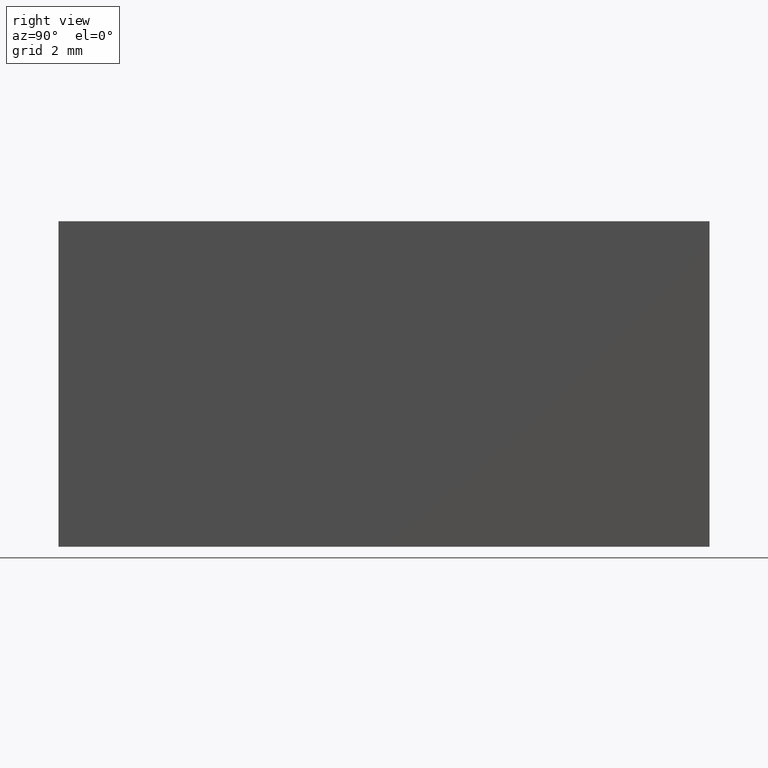
[diagram: clean part render]
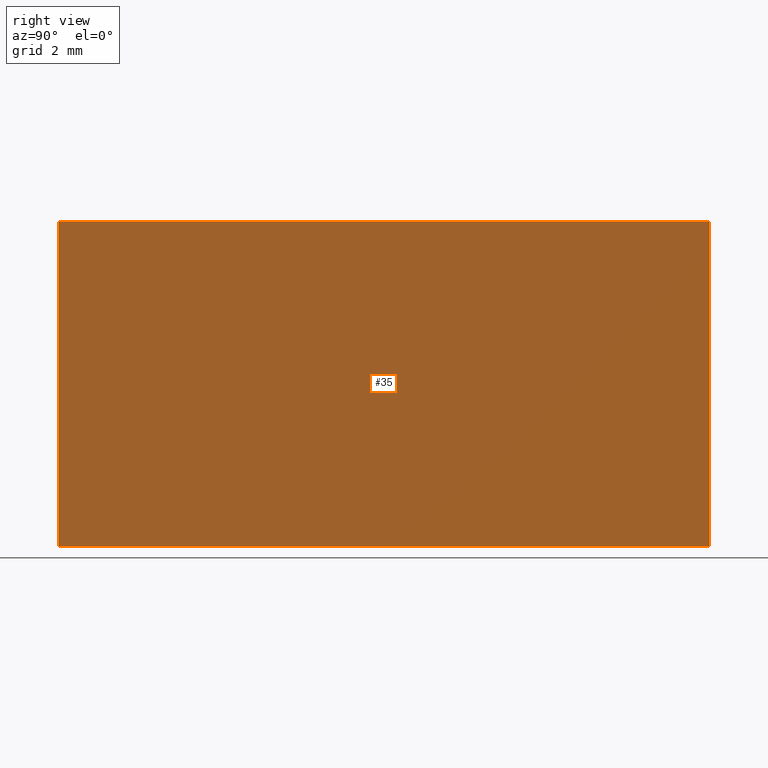
[diagram: same view with one face highlighted and labeled with its STEP entity id]
A machine part, right view. The second image highlights one B-rep face of the part: STEP entity #35.
In plain terms, the highlighted planar face has unit normal (-1, 0, 0).
Its self-contained STEP definition (entity closure, byte-faithful):
#3 = VERTEX_POINT ( 'NONE', #200 ) ;
#5 = PLANE ( 'NONE',  #196 ) ;
#7 = LINE ( 'NONE', #157, #158 ) ;
#12 = EDGE_CURVE ( 'NONE', #123, #3, #7, .T. ) ;
#13 = LINE ( 'NONE', #181, #43 ) ;
#15 = FACE_OUTER_BOUND ( 'NONE', #84, .T. ) ;
#20 = EDGE_CURVE ( 'NONE', #123, #36, #28, .T. ) ;
#28 = LINE ( 'NONE', #180, #151 ) ;
#35 = ADVANCED_FACE ( 'NONE', ( #15 ), #5, .F. ) ;
#36 = VERTEX_POINT ( 'NONE', #195 ) ;
#43 = VECTOR ( 'NONE', #76, 1000.000000000000000 ) ;
#48 = CARTESIAN_POINT ( 'NONE',  ( 0.0000000000000000000, 0.0000000000000000000, 0.0000000000000000000 ) ) ;
#58 = DIRECTION ( 'NONE',  ( -1.000000000000000000, 0.0000000000000000000, 6.123233995736766000E-017 ) ) ;
#62 = DIRECTION ( 'NONE',  ( 6.123233995736766000E-017, 0.0000000000000000000, 1.000000000000000000 ) ) ;
#63 = VECTOR ( 'NONE', #133, 1000.000000000000000 ) ;
#71 = ORIENTED_EDGE ( 'NONE', *, *, #12, .F. ) ;
#76 = DIRECTION ( 'NONE',  ( -6.123233995736766000E-017, -0.0000000000000000000, -1.000000000000000000 ) ) ;
#77 = VERTEX_POINT ( 'NONE', #48 ) ;
#82 = ORIENTED_EDGE ( 'NONE', *, *, #99, .F. ) ;
#84 = EDGE_LOOP ( 'NONE', ( #177, #82, #71, #199 ) ) ;
#99 = EDGE_CURVE ( 'NONE', #3, #77, #129, .T. ) ;
#118 = EDGE_CURVE ( 'NONE', #36, #77, #13, .T. ) ;
#122 = CARTESIAN_POINT ( 'NONE',  ( 0.0000000000000000000, 20.00000000000000000, 0.0000000000000000000 ) ) ;
#123 = VERTEX_POINT ( 'NONE', #186 ) ;
#129 = LINE ( 'NONE', #170, #63 ) ;
#133 = DIRECTION ( 'NONE',  ( -0.0000000000000000000, -1.000000000000000000, -0.0000000000000000000 ) ) ;
#147 = DIRECTION ( 'NONE',  ( -0.0000000000000000000, -1.000000000000000000, -0.0000000000000000000 ) ) ;
#151 = VECTOR ( 'NONE', #147, 1000.000000000000000 ) ;
#157 = CARTESIAN_POINT ( 'NONE',  ( 0.0000000000000000000, 20.00000000000000000, 0.0000000000000000000 ) ) ;
#158 = VECTOR ( 'NONE', #197, 1000.000000000000000 ) ;
#170 = CARTESIAN_POINT ( 'NONE',  ( 0.0000000000000000000, 20.00000000000000000, 0.0000000000000000000 ) ) ;
#177 = ORIENTED_EDGE ( 'NONE', *, *, #118, .T. ) ;
#180 = CARTESIAN_POINT ( 'NONE',  ( 6.123233995736766300E-016, 20.00000000000000000, 10.00000000000000000 ) ) ;
#181 = CARTESIAN_POINT ( 'NONE',  ( 0.0000000000000000000, 0.0000000000000000000, 0.0000000000000000000 ) ) ;
#186 = CARTESIAN_POINT ( 'NONE',  ( 6.123233995736766300E-016, 20.00000000000000000, 10.00000000000000000 ) ) ;
#195 = CARTESIAN_POINT ( 'NONE',  ( 6.123233995736766300E-016, 0.0000000000000000000, 10.00000000000000000 ) ) ;
#196 = AXIS2_PLACEMENT_3D ( 'NONE', #122, #58, #62 ) ;
#197 = DIRECTION ( 'NONE',  ( -6.123233995736766000E-017, -0.0000000000000000000, -1.000000000000000000 ) ) ;
#199 = ORIENTED_EDGE ( 'NONE', *, *, #20, .T. ) ;
#200 = CARTESIAN_POINT ( 'NONE',  ( 0.0000000000000000000, 20.00000000000000000, 0.0000000000000000000 ) ) ;